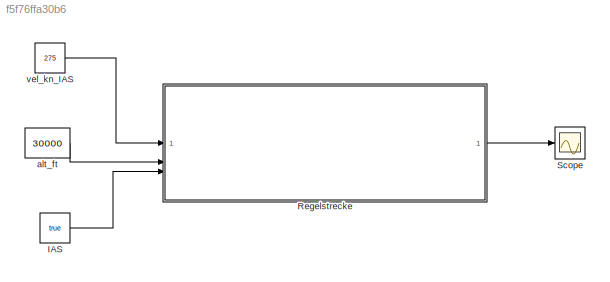
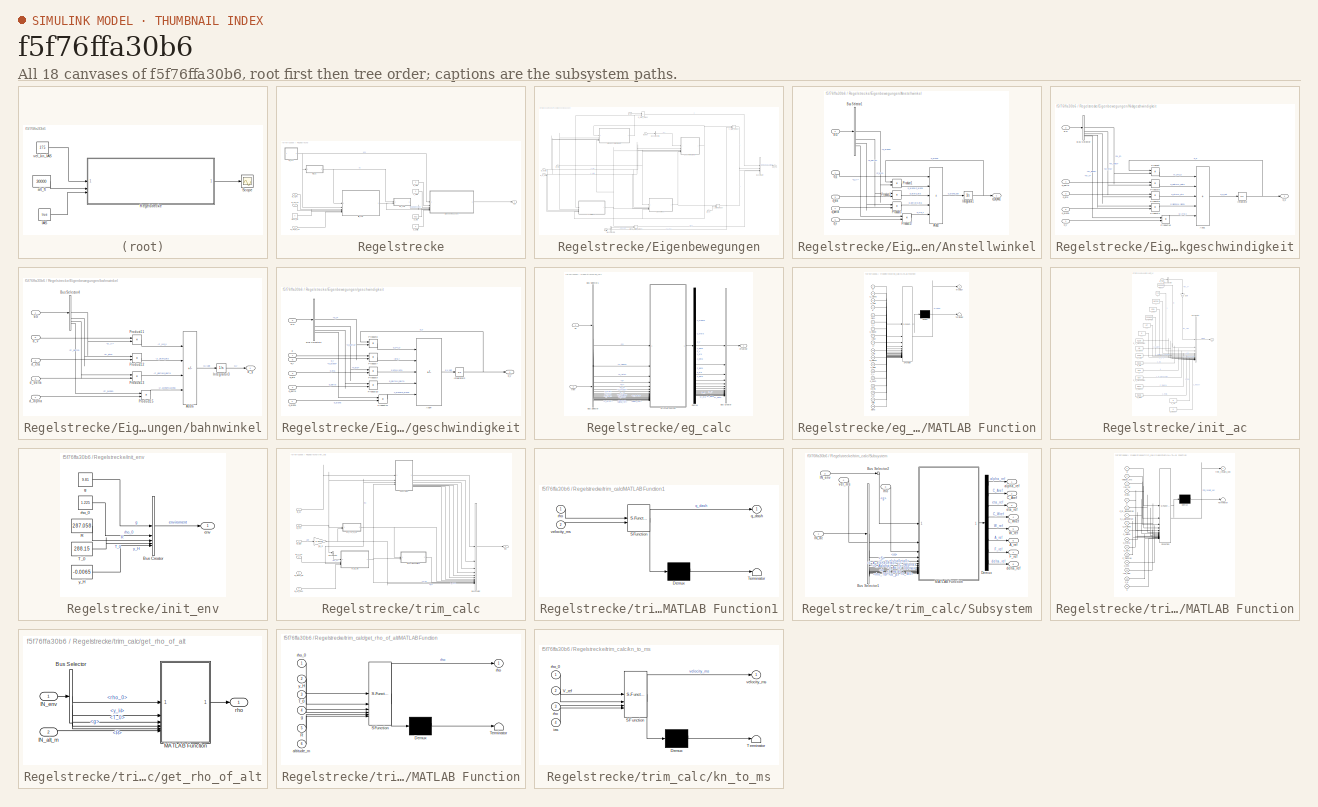
[diagram: thumbnail index - all 18 canvases of the model, root first then tree order]
MODEL slx_f5f76ffa30b6
KIND model
CONFIG AbsTol = auto
CONFIG EnableMultiTasking = off
CONFIG FixedStep = 0.02
CONFIG MaxStep = auto
CONFIG MinStep = auto
CONFIG RelTol = 1e-3
CONFIG SampleTimeConstraint = Unconstrained
CONFIG SolverName = ode4
CONFIG StartTime = 0.0
CONFIG StopTime = 500.0
BLOCK [Constant] IAS
  Value = true
BLOCK [SubSystem] Regelstrecke
BLOCK [SubSystem] Regelstrecke/Eigenbewegungen
BLOCK [SubSystem] Regelstrecke/Eigenbewegungen/Anstellwinkel
BLOCK [Sum] Regelstrecke/Eigenbewegungen/Anstellwinkel/Add2
  IconShape = rectangular
  Inputs = +++++
BLOCK [BusSelector] Regelstrecke/Eigenbewegungen/Anstellwinkel/Bus Selector1
  OutputSignals = Z_alpha,Z_eta,Z_delta,Z_V
BLOCK [Inport] Regelstrecke/Eigenbewegungen/Anstellwinkel/EG
  Port = 2
BLOCK [Integrator] Regelstrecke/Eigenbewegungen/Anstellwinkel/Integrator1
BLOCK [Product] Regelstrecke/Eigenbewegungen/Anstellwinkel/Product1
BLOCK [Product] Regelstrecke/Eigenbewegungen/Anstellwinkel/Product17
BLOCK [Product] Regelstrecke/Eigenbewegungen/Anstellwinkel/Product2
BLOCK [Product] Regelstrecke/Eigenbewegungen/Anstellwinkel/Product3
BLOCK [Outport] Regelstrecke/Eigenbewegungen/Anstellwinkel/d_alpha1
BLOCK [Inport] Regelstrecke/Eigenbewegungen/Anstellwinkel/d_delta
  Port = 4
BLOCK [Inport] Regelstrecke/Eigenbewegungen/Anstellwinkel/d_eta
  Port = 3
BLOCK [Inport] Regelstrecke/Eigenbewegungen/Anstellwinkel/d_q
  NameLocation = top
BLOCK [Inport] Regelstrecke/Eigenbewegungen/Anstellwinkel/d_v
  Port = 5
BLOCK [BusCreator] Regelstrecke/Eigenbewegungen/Bus Creator
  DisplayOption = bar
  InheritFromInputs = on
  Inputs = 4
BLOCK [BusSelector] Regelstrecke/Eigenbewegungen/Bus Selector2
  OutputSignals = alpha_ref,vel_ms
BLOCK [BusSelector] Regelstrecke/Eigenbewegungen/Bus Selector5
  OutputSignals = g
BLOCK [Inport] Regelstrecke/Eigenbewegungen/IN_EG
  Port = 4
BLOCK [Inport] Regelstrecke/Eigenbewegungen/IN_d_delta
  Port = 7
BLOCK [Inport] Regelstrecke/Eigenbewegungen/IN_d_eta
  Port = 6
BLOCK [Inport] Regelstrecke/Eigenbewegungen/IN_env
BLOCK [Inport] Regelstrecke/Eigenbewegungen/IN_q0
  NameLocation = top
  Port = 2
BLOCK [Inport] Regelstrecke/Eigenbewegungen/IN_trim
  Port = 5
BLOCK [Inport] Regelstrecke/Eigenbewegungen/IN_y0
  Port = 3
BLOCK [SubSystem] Regelstrecke/Eigenbewegungen/Nickgeschwindigkeit
BLOCK [Sum] Regelstrecke/Eigenbewegungen/Nickgeschwindigkeit/Add1
  IconShape = rectangular
  Inputs = +++++
BLOCK [BusSelector] Regelstrecke/Eigenbewegungen/Nickgeschwindigkeit/Bus Selector
  OutputSignals = M_q,M_delta,M_eta,M_alpha,M_V
BLOCK [Inport] Regelstrecke/Eigenbewegungen/Nickgeschwindigkeit/EG
  Port = 2
BLOCK [Integrator] Regelstrecke/Eigenbewegungen/Nickgeschwindigkeit/Integrator
BLOCK [Product] Regelstrecke/Eigenbewegungen/Nickgeschwindigkeit/Product
BLOCK [Product] Regelstrecke/Eigenbewegungen/Nickgeschwindigkeit/Product16
BLOCK [Product] Regelstrecke/Eigenbewegungen/Nickgeschwindigkeit/Product4
BLOCK [Product] Regelstrecke/Eigenbewegungen/Nickgeschwindigkeit/Product5
BLOCK [Product] Regelstrecke/Eigenbewegungen/Nickgeschwindigkeit/Product6
BLOCK [Inport] Regelstrecke/Eigenbewegungen/Nickgeschwindigkeit/d_alpha
  Port = 5
BLOCK [Inport] Regelstrecke/Eigenbewegungen/Nickgeschwindigkeit/d_delta
  Port = 4
BLOCK [Inport] Regelstrecke/Eigenbewegungen/Nickgeschwindigkeit/d_eta
  Port = 3
BLOCK [Outport] Regelstrecke/Eigenbewegungen/Nickgeschwindigkeit/d_q
BLOCK [Inport] Regelstrecke/Eigenbewegungen/Nickgeschwindigkeit/d_v
BLOCK [Outport] Regelstrecke/Eigenbewegungen/Out_FZ
BLOCK [Sum] Regelstrecke/Eigenbewegungen/alpha_state_adder
  IconShape = rectangular
  NameLocation = top
BLOCK [SubSystem] Regelstrecke/Eigenbewegungen/bahnwinkel
BLOCK [Sum] Regelstrecke/Eigenbewegungen/bahnwinkel/Add6
  IconShape = rectangular
  Inputs = ----
BLOCK [BusSelector] Regelstrecke/Eigenbewegungen/bahnwinkel/Bus Selector4
  OutputSignals = Z_V,Z_eta,Z_delta,Z_alpha
BLOCK [Inport] Regelstrecke/Eigenbewegungen/bahnwinkel/EG
BLOCK [Integrator] Regelstrecke/Eigenbewegungen/bahnwinkel/Integrator3
BLOCK [Product] Regelstrecke/Eigenbewegungen/bahnwinkel/Product11
BLOCK [Product] Regelstrecke/Eigenbewegungen/bahnwinkel/Product12
BLOCK [Product] Regelstrecke/Eigenbewegungen/bahnwinkel/Product13
BLOCK [Product] Regelstrecke/Eigenbewegungen/bahnwinkel/Product15
BLOCK [Inport] Regelstrecke/Eigenbewegungen/bahnwinkel/d_alpha
  Port = 4
BLOCK [Inport] Regelstrecke/Eigenbewegungen/bahnwinkel/d_delta
  Port = 3
BLOCK [Inport] Regelstrecke/Eigenbewegungen/bahnwinkel/d_eta
  Port = 2
BLOCK [Inport] Regelstrecke/Eigenbewegungen/bahnwinkel/d_v
  Port = 5
BLOCK [Outport] Regelstrecke/Eigenbewegungen/bahnwinkel/d_y
BLOCK [SubSystem] Regelstrecke/Eigenbewegungen/geschwindigkeit
BLOCK [Sum] Regelstrecke/Eigenbewegungen/geschwindigkeit/Add4
  IconShape = rectangular
  Inputs = +-+++
BLOCK [BusSelector] Regelstrecke/Eigenbewegungen/geschwindigkeit/Bus Selector3
  OutputSignals = X_V,X_eta,X_delta,X_alpha
BLOCK [Inport] Regelstrecke/Eigenbewegungen/geschwindigkeit/EG
  Port = 5
BLOCK [Integrator] Regelstrecke/Eigenbewegungen/geschwindigkeit/Integrator2
BLOCK [Product] Regelstrecke/Eigenbewegungen/geschwindigkeit/Product10
BLOCK [Product] Regelstrecke/Eigenbewegungen/geschwindigkeit/Product14
BLOCK [Product] Regelstrecke/Eigenbewegungen/geschwindigkeit/Product7
BLOCK [Product] Regelstrecke/Eigenbewegungen/geschwindigkeit/Product8
BLOCK [Product] Regelstrecke/Eigenbewegungen/geschwindigkeit/Product9
BLOCK [Inport] Regelstrecke/Eigenbewegungen/geschwindigkeit/d_alpha
  Port = 4
BLOCK [Inport] Regelstrecke/Eigenbewegungen/geschwindigkeit/d_delta
  Port = 2
BLOCK [Inport] Regelstrecke/Eigenbewegungen/geschwindigkeit/d_eta
  Port = 3
BLOCK [Outport] Regelstrecke/Eigenbewegungen/geschwindigkeit/d_v
BLOCK [Inport] Regelstrecke/Eigenbewegungen/geschwindigkeit/d_y
  Port = 6
BLOCK [Inport] Regelstrecke/Eigenbewegungen/geschwindigkeit/g
  NameLocation = top
BLOCK [Sum] Regelstrecke/Eigenbewegungen/q_state_adder
  IconShape = rectangular
BLOCK [Sum] Regelstrecke/Eigenbewegungen/v_state_adder
  IconShape = rectangular
  NameLocation = top
BLOCK [Sum] Regelstrecke/Eigenbewegungen/y_state_adder
  IconShape = rectangular
BLOCK [Outport] Regelstrecke/FZ
BLOCK [Inport] Regelstrecke/IN_Alt_Ft
  Port = 2
BLOCK [Inport] Regelstrecke/IN_Vel_Kn
BLOCK [Inport] Regelstrecke/IN_Vel_is_IAS
  Port = 3
BLOCK [Constant] Regelstrecke/alpha_init
  Value = 0
BLOCK [Constant] Regelstrecke/d_delta
  Value = 0
BLOCK [Constant] Regelstrecke/d_eta
  Value = -0.02
BLOCK [SubSystem] Regelstrecke/eg_calc
BLOCK [BusCreator] Regelstrecke/eg_calc/Bus Creator
  DisplayOption = bar
  InheritFromInputs = on
  Inputs = 15
BLOCK [BusSelector] Regelstrecke/eg_calc/Bus Selector
  OutputSignals = C_Aref,q_dash,vel_ms,C_Wref,delta_ref,alpha_ref
BLOCK [BusSelector] Regelstrecke/eg_calc/Bus Selector1
  OutputSignals = k,C_Aalpha,C_Aeta,S,m,n_v,C_madot,l_mue,I_y,C_mq,C_malpha,C_meta
BLOCK [Demux] Regelstrecke/eg_calc/Demux
  Outputs = 15
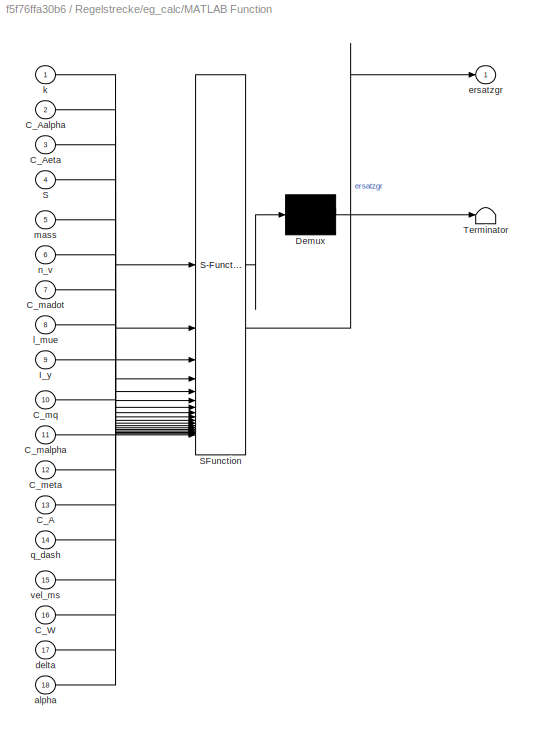
BLOCK [SubSystem] Regelstrecke/eg_calc/MATLAB Function
  ErrorFcn = Stateflow.Translate.translate
  PermitHierarchicalResolution = ExplicitOnly
  SFBlockType = MATLAB Function
  TreatAsAtomicUnit = on
BLOCK [Demux] Regelstrecke/eg_calc/MATLAB Function/ Demux 
  Outputs = 1
BLOCK [S-Function] Regelstrecke/eg_calc/MATLAB Function/ SFunction 
  EnableBusSupport = on
  FunctionName = sf_sfun
  PortCounts = [18 2]
  SFcnIsStateOwnerBlock = off
  SFunctionDeploymentMode = off
  Tag = Stateflow S-Function 5
BLOCK [Terminator] Regelstrecke/eg_calc/MATLAB Function/ Terminator 
BLOCK [Inport] Regelstrecke/eg_calc/MATLAB Function/C_A
  Port = 13
BLOCK [Inport] Regelstrecke/eg_calc/MATLAB Function/C_Aalpha
  Port = 2
BLOCK [Inport] Regelstrecke/eg_calc/MATLAB Function/C_Aeta
  Port = 3
BLOCK [Inport] Regelstrecke/eg_calc/MATLAB Function/C_W
  Port = 16
BLOCK [Inport] Regelstrecke/eg_calc/MATLAB Function/C_madot
  Port = 7
BLOCK [Inport] Regelstrecke/eg_calc/MATLAB Function/C_malpha
  Port = 11
BLOCK [Inport] Regelstrecke/eg_calc/MATLAB Function/C_meta
  Port = 12
BLOCK [Inport] Regelstrecke/eg_calc/MATLAB Function/C_mq
  Port = 10
BLOCK [Inport] Regelstrecke/eg_calc/MATLAB Function/I_y
  Port = 9
BLOCK [Inport] Regelstrecke/eg_calc/MATLAB Function/S
  Port = 4
BLOCK [Inport] Regelstrecke/eg_calc/MATLAB Function/alpha
  Port = 18
BLOCK [Inport] Regelstrecke/eg_calc/MATLAB Function/delta
  Port = 17
BLOCK [Outport] Regelstrecke/eg_calc/MATLAB Function/ersatzgr
BLOCK [Inport] Regelstrecke/eg_calc/MATLAB Function/k
BLOCK [Inport] Regelstrecke/eg_calc/MATLAB Function/l_mue
  Port = 8
BLOCK [Inport] Regelstrecke/eg_calc/MATLAB Function/mass
  Port = 5
BLOCK [Inport] Regelstrecke/eg_calc/MATLAB Function/n_v
  Port = 6
BLOCK [Inport] Regelstrecke/eg_calc/MATLAB Function/q_dash
  Port = 14
BLOCK [Inport] Regelstrecke/eg_calc/MATLAB Function/vel_ms
  Port = 15
BLOCK [Inport] Regelstrecke/eg_calc/ac
BLOCK [Outport] Regelstrecke/eg_calc/ersatzgr
BLOCK [Inport] Regelstrecke/eg_calc/trim
  Port = 2
BLOCK [SubSystem] Regelstrecke/init_ac
BLOCK [BusCreator] Regelstrecke/init_ac/Bus Creator
  DisplayOption = bar
  InheritFromInputs = on
  Inputs = 18
BLOCK [BusSelector] Regelstrecke/init_ac/Bus Selector
  OutputSignals = rho_0
BLOCK [Constant] Regelstrecke/init_ac/C_A_alpha0eta0
  Value = 0.239
BLOCK [Constant] Regelstrecke/init_ac/C_Aalpha
  Value = 4.6
BLOCK [Constant] Regelstrecke/init_ac/C_Aeta
  Value = 0.189
BLOCK [Constant] Regelstrecke/init_ac/C_W0
  Value = 0.015
BLOCK [Constant] Regelstrecke/init_ac/C_m_alpha0eta0
  Value = 0.07
BLOCK [Constant] Regelstrecke/init_ac/C_madot
  Value = -1
BLOCK [Constant] Regelstrecke/init_ac/C_malpha
  Value = -0.824
BLOCK [Constant] Regelstrecke/init_ac/C_meta
  Value = -0.638
BLOCK [Constant] Regelstrecke/init_ac/C_mq
  Value = -3
BLOCK [Constant] Regelstrecke/init_ac/F_TBPmax
  Value = 320800
BLOCK [Gain] Regelstrecke/init_ac/Gain
  NameLocation = left
BLOCK [Constant] Regelstrecke/init_ac/I_y
  Value = 6.87e6
BLOCK [Constant] Regelstrecke/init_ac/S
  Value = 268
BLOCK [Outport] Regelstrecke/init_ac/ac
BLOCK [Inport] Regelstrecke/init_ac/in_env
BLOCK [Constant] Regelstrecke/init_ac/k
  Value = 0.04
BLOCK [Constant] Regelstrecke/init_ac/l_mue
  Value = 6.39
BLOCK [Constant] Regelstrecke/init_ac/mass
  Value = 100000
BLOCK [Constant] Regelstrecke/init_ac/n_p
  Value = 0.7
BLOCK [Constant] Regelstrecke/init_ac/n_v
  Value = 0
BLOCK [SubSystem] Regelstrecke/init_env
BLOCK [BusCreator] Regelstrecke/init_env/Bus Creator
  DisplayOption = bar
  InheritFromInputs = on
  Inputs = 5
BLOCK [Constant] Regelstrecke/init_env/R
  Value = 287.058
BLOCK [Constant] Regelstrecke/init_env/T_0
  Value = 288.15
BLOCK [Outport] Regelstrecke/init_env/env
BLOCK [Constant] Regelstrecke/init_env/g
  Value = 9.81
BLOCK [Constant] Regelstrecke/init_env/rho_0
  Value = 1.225
BLOCK [Constant] Regelstrecke/init_env/y_H
  Value = -0.0065
BLOCK [Constant] Regelstrecke/q_start
  Value = 0
BLOCK [SubSystem] Regelstrecke/trim_calc
BLOCK [BusCreator] Regelstrecke/trim_calc/Bus Creator
  DisplayOption = bar
  InheritFromInputs = on
  Inputs = 12
BLOCK [BusSelector] Regelstrecke/trim_calc/Bus Selector
  OutputSignals = rho_0
BLOCK [Inport] Regelstrecke/trim_calc/IN_IAS_bool
  Port = 6
BLOCK [Inport] Regelstrecke/trim_calc/IN_V_ref
  Port = 4
BLOCK [Inport] Regelstrecke/trim_calc/IN_ac
BLOCK [Inport] Regelstrecke/trim_calc/IN_alpha_init
  Port = 5
BLOCK [Inport] Regelstrecke/trim_calc/IN_alt_ft
  Port = 3
BLOCK [Inport] Regelstrecke/trim_calc/IN_env
  Port = 2
BLOCK [SubSystem] Regelstrecke/trim_calc/MATLAB Function1
  ErrorFcn = Stateflow.Translate.translate
  PermitHierarchicalResolution = ExplicitOnly
  SFBlockType = MATLAB Function
  TreatAsAtomicUnit = on
BLOCK [Demux] Regelstrecke/trim_calc/MATLAB Function1/ Demux 
  Outputs = 1
BLOCK [S-Function] Regelstrecke/trim_calc/MATLAB Function1/ SFunction 
  EnableBusSupport = on
  FunctionName = sf_sfun
  PortCounts = [2 2]
  SFcnIsStateOwnerBlock = off
  SFunctionDeploymentMode = off
  Tag = Stateflow S-Function 3
BLOCK [Terminator] Regelstrecke/trim_calc/MATLAB Function1/ Terminator 
BLOCK [Outport] Regelstrecke/trim_calc/MATLAB Function1/q_dash
BLOCK [Inport] Regelstrecke/trim_calc/MATLAB Function1/rho
BLOCK [Inport] Regelstrecke/trim_calc/MATLAB Function1/velocity_ms
  Port = 2
BLOCK [SubSystem] Regelstrecke/trim_calc/Subsystem
BLOCK [Outport] Regelstrecke/trim_calc/Subsystem/A_ref
  Port = 6
BLOCK [BusSelector] Regelstrecke/trim_calc/Subsystem/Bus Selector1
  OutputSignals = m,S,C_m_alpha0eta0,C_A_alpha0eta0,C_malpha,C_Aalpha,C_meta,C_Aeta,F_TBPmax,C_W0,rho_TBP,n_p,k
BLOCK [BusSelector] Regelstrecke/trim_calc/Subsystem/Bus Selector2
  OutputSignals = g
BLOCK [Outport] Regelstrecke/trim_calc/Subsystem/C_Aref
  Port = 2
BLOCK [Outport] Regelstrecke/trim_calc/Subsystem/C_Wref
  Port = 4
BLOCK [Demux] Regelstrecke/trim_calc/Subsystem/Demux
  Outputs = 8
BLOCK [Outport] Regelstrecke/trim_calc/Subsystem/F_ref
  Port = 7
BLOCK [Inport] Regelstrecke/trim_calc/Subsystem/IN_ac
BLOCK [Inport] Regelstrecke/trim_calc/Subsystem/IN_env
  Port = 2
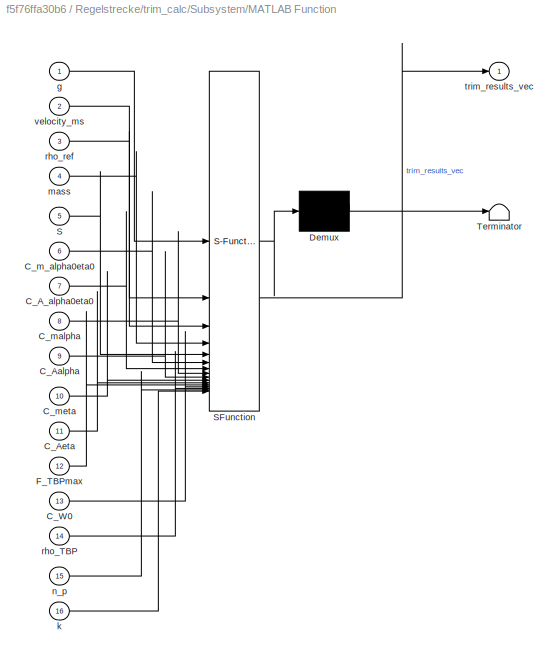
BLOCK [SubSystem] Regelstrecke/trim_calc/Subsystem/MATLAB Function
  ErrorFcn = Stateflow.Translate.translate
  PermitHierarchicalResolution = ExplicitOnly
  SFBlockType = MATLAB Function
  TreatAsAtomicUnit = on
BLOCK [Demux] Regelstrecke/trim_calc/Subsystem/MATLAB Function/ Demux 
  Outputs = 1
BLOCK [S-Function] Regelstrecke/trim_calc/Subsystem/MATLAB Function/ SFunction 
  EnableBusSupport = on
  FunctionName = sf_sfun
  PortCounts = [16 2]
  SFcnIsStateOwnerBlock = off
  SFunctionDeploymentMode = off
  Tag = Stateflow S-Function 4
BLOCK [Terminator] Regelstrecke/trim_calc/Subsystem/MATLAB Function/ Terminator 
BLOCK [Inport] Regelstrecke/trim_calc/Subsystem/MATLAB Function/C_A_alpha0eta0
  Port = 7
BLOCK [Inport] Regelstrecke/trim_calc/Subsystem/MATLAB Function/C_Aalpha
  Port = 9
BLOCK [Inport] Regelstrecke/trim_calc/Subsystem/MATLAB Function/C_Aeta
  Port = 11
BLOCK [Inport] Regelstrecke/trim_calc/Subsystem/MATLAB Function/C_W0
  Port = 13
BLOCK [Inport] Regelstrecke/trim_calc/Subsystem/MATLAB Function/C_m_alpha0eta0
  Port = 6
BLOCK [Inport] Regelstrecke/trim_calc/Subsystem/MATLAB Function/C_malpha
  Port = 8
BLOCK [Inport] Regelstrecke/trim_calc/Subsystem/MATLAB Function/C_meta
  Port = 10
BLOCK [Inport] Regelstrecke/trim_calc/Subsystem/MATLAB Function/F_TBPmax
  Port = 12
BLOCK [Inport] Regelstrecke/trim_calc/Subsystem/MATLAB Function/S
  Port = 5
BLOCK [Inport] Regelstrecke/trim_calc/Subsystem/MATLAB Function/g
BLOCK [Inport] Regelstrecke/trim_calc/Subsystem/MATLAB Function/k
  Port = 16
BLOCK [Inport] Regelstrecke/trim_calc/Subsystem/MATLAB Function/mass
  Port = 4
BLOCK [Inport] Regelstrecke/trim_calc/Subsystem/MATLAB Function/n_p
  Port = 15
BLOCK [Inport] Regelstrecke/trim_calc/Subsystem/MATLAB Function/rho_TBP
  Port = 14
BLOCK [Inport] Regelstrecke/trim_calc/Subsystem/MATLAB Function/rho_ref
  Port = 3
BLOCK [Outport] Regelstrecke/trim_calc/Subsystem/MATLAB Function/trim_results_vec
BLOCK [Inport] Regelstrecke/trim_calc/Subsystem/MATLAB Function/velocity_ms
  Port = 2
BLOCK [Outport] Regelstrecke/trim_calc/Subsystem/W_ref
  Port = 5
BLOCK [Outport] Regelstrecke/trim_calc/Subsystem/alpha_ref
BLOCK [Outport] Regelstrecke/trim_calc/Subsystem/delta_ref
  Port = 8
BLOCK [Outport] Regelstrecke/trim_calc/Subsystem/eta_ref
  Port = 3
BLOCK [Inport] Regelstrecke/trim_calc/Subsystem/rho
  Port = 3
BLOCK [Inport] Regelstrecke/trim_calc/Subsystem/vel_ms
  Port = 4
BLOCK [Gain] Regelstrecke/trim_calc/ft_to_m
  Gain = 0.30479
BLOCK [SubSystem] Regelstrecke/trim_calc/get_rho_of_alt
BLOCK [BusSelector] Regelstrecke/trim_calc/get_rho_of_alt/Bus Selector
  OutputSignals = rho_0,y_H,T_0,g,R
BLOCK [Inport] Regelstrecke/trim_calc/get_rho_of_alt/IN_alt_m
  Port = 2
BLOCK [Inport] Regelstrecke/trim_calc/get_rho_of_alt/IN_env
BLOCK [SubSystem] Regelstrecke/trim_calc/get_rho_of_alt/MATLAB Function
  ErrorFcn = Stateflow.Translate.translate
  PermitHierarchicalResolution = ExplicitOnly
  SFBlockType = MATLAB Function
  TreatAsAtomicUnit = on
BLOCK [Demux] Regelstrecke/trim_calc/get_rho_of_alt/MATLAB Function/ Demux 
  Outputs = 1
BLOCK [S-Function] Regelstrecke/trim_calc/get_rho_of_alt/MATLAB Function/ SFunction 
  EnableBusSupport = on
  FunctionName = sf_sfun
  PortCounts = [6 2]
  SFcnIsStateOwnerBlock = off
  SFunctionDeploymentMode = off
  Tag = Stateflow S-Function 2
BLOCK [Terminator] Regelstrecke/trim_calc/get_rho_of_alt/MATLAB Function/ Terminator 
BLOCK [Inport] Regelstrecke/trim_calc/get_rho_of_alt/MATLAB Function/R
  Port = 5
BLOCK [Inport] Regelstrecke/trim_calc/get_rho_of_alt/MATLAB Function/T_0
  Port = 3
BLOCK [Inport] Regelstrecke/trim_calc/get_rho_of_alt/MATLAB Function/altitude_m
  Port = 6
BLOCK [Inport] Regelstrecke/trim_calc/get_rho_of_alt/MATLAB Function/g
  Port = 4
BLOCK [Outport] Regelstrecke/trim_calc/get_rho_of_alt/MATLAB Function/rho
BLOCK [Inport] Regelstrecke/trim_calc/get_rho_of_alt/MATLAB Function/rho_0
BLOCK [Inport] Regelstrecke/trim_calc/get_rho_of_alt/MATLAB Function/y_H
  Port = 2
BLOCK [Outport] Regelstrecke/trim_calc/get_rho_of_alt/rho
BLOCK [SubSystem] Regelstrecke/trim_calc/kn_to_ms
  ErrorFcn = Stateflow.Translate.translate
  PermitHierarchicalResolution = ExplicitOnly
  SFBlockType = MATLAB Function
  TreatAsAtomicUnit = on
BLOCK [Demux] Regelstrecke/trim_calc/kn_to_ms/ Demux 
  Outputs = 1
BLOCK [S-Function] Regelstrecke/trim_calc/kn_to_ms/ SFunction 
  EnableBusSupport = on
  FunctionName = sf_sfun
  PortCounts = [4 2]
  SFcnIsStateOwnerBlock = off
  SFunctionDeploymentMode = off
  Tag = Stateflow S-Function 1
BLOCK [Terminator] Regelstrecke/trim_calc/kn_to_ms/ Terminator 
BLOCK [Inport] Regelstrecke/trim_calc/kn_to_ms/V_ref
  Port = 2
BLOCK [Inport] Regelstrecke/trim_calc/kn_to_ms/ias
  Port = 4
BLOCK [Inport] Regelstrecke/trim_calc/kn_to_ms/rho
  Port = 3
BLOCK [Inport] Regelstrecke/trim_calc/kn_to_ms/rho_0
BLOCK [Outport] Regelstrecke/trim_calc/kn_to_ms/velocity_ms
BLOCK [Outport] Regelstrecke/trim_calc/trim
BLOCK [Constant] Regelstrecke/y_start
  Value = 0
BLOCK [Scope] Scope
  Floating = off
  NumInputPorts = 1
  ScopeSpecificationString = Simulink.scopes.TimeScopeBlockCfg('CurrentConfiguration', extmgr.ConfigurationSet(extmgr.Configuration('Core','General UI',true),extmgr.Configuration('Core','Source UI',true),extmgr.Configuration('Sources','WiredSimulink',true),extmgr.Configuration('Visuals','Time Domain',true,'SerializedDisplays',{struct('MinYLimReal','-4.26053','MaxYLimReal','2.26393','YLabelReal','','MinYLimMag','0.00000','MaxY...<+1730ch>
BLOCK [Constant] alt_ft
  Value = 30000
BLOCK [Constant] vel_kn_IAS
  Value = 275
LINE IAS:1 -> Regelstrecke:3
LINE Regelstrecke/Eigenbewegungen/Anstellwinkel/Add2:1 -> Regelstrecke/Eigenbewegungen/Anstellwinkel/Integrator1:1
LINE Regelstrecke/Eigenbewegungen/Anstellwinkel/Bus Selector1:1 -> Regelstrecke/Eigenbewegungen/Anstellwinkel/Product1:2
LINE Regelstrecke/Eigenbewegungen/Anstellwinkel/Bus Selector1:2 -> Regelstrecke/Eigenbewegungen/Anstellwinkel/Product2:1
LINE Regelstrecke/Eigenbewegungen/Anstellwinkel/Bus Selector1:3 -> Regelstrecke/Eigenbewegungen/Anstellwinkel/Product3:1
LINE Regelstrecke/Eigenbewegungen/Anstellwinkel/Bus Selector1:4 -> Regelstrecke/Eigenbewegungen/Anstellwinkel/Product17:1
LINE Regelstrecke/Eigenbewegungen/Anstellwinkel/EG:1 -> Regelstrecke/Eigenbewegungen/Anstellwinkel/Bus Selector1:1
NET Regelstrecke/Eigenbewegungen/Anstellwinkel/Integrator1:1 -> Regelstrecke/Eigenbewegungen/Anstellwinkel/Product1:1, Regelstrecke/Eigenbewegungen/Anstellwinkel/d_alpha1:1
LINE Regelstrecke/Eigenbewegungen/Anstellwinkel/Product17:1 -> Regelstrecke/Eigenbewegungen/Anstellwinkel/Add2:5
LINE Regelstrecke/Eigenbewegungen/Anstellwinkel/Product1:1 -> Regelstrecke/Eigenbewegungen/Anstellwinkel/Add2:2
LINE Regelstrecke/Eigenbewegungen/Anstellwinkel/Product2:1 -> Regelstrecke/Eigenbewegungen/Anstellwinkel/Add2:3
LINE Regelstrecke/Eigenbewegungen/Anstellwinkel/Product3:1 -> Regelstrecke/Eigenbewegungen/Anstellwinkel/Add2:4
LINE Regelstrecke/Eigenbewegungen/Anstellwinkel/d_delta:1 -> Regelstrecke/Eigenbewegungen/Anstellwinkel/Product3:2
LINE Regelstrecke/Eigenbewegungen/Anstellwinkel/d_eta:1 -> Regelstrecke/Eigenbewegungen/Anstellwinkel/Product2:2
LINE Regelstrecke/Eigenbewegungen/Anstellwinkel/d_q:1 -> Regelstrecke/Eigenbewegungen/Anstellwinkel/Add2:1
LINE Regelstrecke/Eigenbewegungen/Anstellwinkel/d_v:1 -> Regelstrecke/Eigenbewegungen/Anstellwinkel/Product17:2
NET Regelstrecke/Eigenbewegungen/Anstellwinkel:1 -> Regelstrecke/Eigenbewegungen/Nickgeschwindigkeit:5, Regelstrecke/Eigenbewegungen/alpha_state_adder:1, Regelstrecke/Eigenbewegungen/bahnwinkel:4, Regelstrecke/Eigenbewegungen/geschwindigkeit:4
LINE Regelstrecke/Eigenbewegungen/Bus Creator:1 -> Regelstrecke/Eigenbewegungen/Out_FZ:1
LINE Regelstrecke/Eigenbewegungen/Bus Selector2:1 -> Regelstrecke/Eigenbewegungen/alpha_state_adder:2
LINE Regelstrecke/Eigenbewegungen/Bus Selector2:2 -> Regelstrecke/Eigenbewegungen/v_state_adder:2
LINE Regelstrecke/Eigenbewegungen/Bus Selector5:1 -> Regelstrecke/Eigenbewegungen/geschwindigkeit:1
NET Regelstrecke/Eigenbewegungen/IN_EG:1 -> Regelstrecke/Eigenbewegungen/Anstellwinkel:2, Regelstrecke/Eigenbewegungen/Nickgeschwindigkeit:2, Regelstrecke/Eigenbewegungen/bahnwinkel:1, Regelstrecke/Eigenbewegungen/geschwindigkeit:5
NET Regelstrecke/Eigenbewegungen/IN_d_delta:1 -> Regelstrecke/Eigenbewegungen/Anstellwinkel:4, Regelstrecke/Eigenbewegungen/Nickgeschwindigkeit:4, Regelstrecke/Eigenbewegungen/bahnwinkel:3, Regelstrecke/Eigenbewegungen/geschwindigkeit:2
NET Regelstrecke/Eigenbewegungen/IN_d_eta:1 -> Regelstrecke/Eigenbewegungen/Anstellwinkel:3, Regelstrecke/Eigenbewegungen/Nickgeschwindigkeit:3, Regelstrecke/Eigenbewegungen/bahnwinkel:2, Regelstrecke/Eigenbewegungen/geschwindigkeit:3
LINE Regelstrecke/Eigenbewegungen/IN_env:1 -> Regelstrecke/Eigenbewegungen/Bus Selector5:1
LINE Regelstrecke/Eigenbewegungen/IN_q0:1 -> Regelstrecke/Eigenbewegungen/q_state_adder:1
LINE Regelstrecke/Eigenbewegungen/IN_trim:1 -> Regelstrecke/Eigenbewegungen/Bus Selector2:1
LINE Regelstrecke/Eigenbewegungen/IN_y0:1 -> Regelstrecke/Eigenbewegungen/y_state_adder:2
LINE Regelstrecke/Eigenbewegungen/Nickgeschwindigkeit/Add1:1 -> Regelstrecke/Eigenbewegungen/Nickgeschwindigkeit/Integrator:1
LINE Regelstrecke/Eigenbewegungen/Nickgeschwindigkeit/Bus Selector:1 -> Regelstrecke/Eigenbewegungen/Nickgeschwindigkeit/Product:2
LINE Regelstrecke/Eigenbewegungen/Nickgeschwindigkeit/Bus Selector:2 -> Regelstrecke/Eigenbewegungen/Nickgeschwindigkeit/Product6:2
LINE Regelstrecke/Eigenbewegungen/Nickgeschwindigkeit/Bus Selector:3 -> Regelstrecke/Eigenbewegungen/Nickgeschwindigkeit/Product5:2
LINE Regelstrecke/Eigenbewegungen/Nickgeschwindigkeit/Bus Selector:4 -> Regelstrecke/Eigenbewegungen/Nickgeschwindigkeit/Product4:1
LINE Regelstrecke/Eigenbewegungen/Nickgeschwindigkeit/Bus Selector:5 -> Regelstrecke/Eigenbewegungen/Nickgeschwindigkeit/Product16:1
LINE Regelstrecke/Eigenbewegungen/Nickgeschwindigkeit/EG:1 -> Regelstrecke/Eigenbewegungen/Nickgeschwindigkeit/Bus Selector:1
NET Regelstrecke/Eigenbewegungen/Nickgeschwindigkeit/Integrator:1 -> Regelstrecke/Eigenbewegungen/Nickgeschwindigkeit/Product:1, Regelstrecke/Eigenbewegungen/Nickgeschwindigkeit/d_q:1
LINE Regelstrecke/Eigenbewegungen/Nickgeschwindigkeit/Product16:1 -> Regelstrecke/Eigenbewegungen/Nickgeschwindigkeit/Add1:5
LINE Regelstrecke/Eigenbewegungen/Nickgeschwindigkeit/Product4:1 -> Regelstrecke/Eigenbewegungen/Nickgeschwindigkeit/Add1:4
LINE Regelstrecke/Eigenbewegungen/Nickgeschwindigkeit/Product5:1 -> Regelstrecke/Eigenbewegungen/Nickgeschwindigkeit/Add1:3
LINE Regelstrecke/Eigenbewegungen/Nickgeschwindigkeit/Product6:1 -> Regelstrecke/Eigenbewegungen/Nickgeschwindigkeit/Add1:2
LINE Regelstrecke/Eigenbewegungen/Nickgeschwindigkeit/Product:1 -> Regelstrecke/Eigenbewegungen/Nickgeschwindigkeit/Add1:1
LINE Regelstrecke/Eigenbewegungen/Nickgeschwindigkeit/d_alpha:1 -> Regelstrecke/Eigenbewegungen/Nickgeschwindigkeit/Product4:2
LINE Regelstrecke/Eigenbewegungen/Nickgeschwindigkeit/d_delta:1 -> Regelstrecke/Eigenbewegungen/Nickgeschwindigkeit/Product6:1
LINE Regelstrecke/Eigenbewegungen/Nickgeschwindigkeit/d_eta:1 -> Regelstrecke/Eigenbewegungen/Nickgeschwindigkeit/Product5:1
LINE Regelstrecke/Eigenbewegungen/Nickgeschwindigkeit/d_v:1 -> Regelstrecke/Eigenbewegungen/Nickgeschwindigkeit/Product16:2
NET Regelstrecke/Eigenbewegungen/Nickgeschwindigkeit:1 -> Regelstrecke/Eigenbewegungen/Anstellwinkel:1, Regelstrecke/Eigenbewegungen/q_state_adder:2
LINE Regelstrecke/Eigenbewegungen/alpha_state_adder:1 -> Regelstrecke/Eigenbewegungen/Bus Creator:4
LINE Regelstrecke/Eigenbewegungen/bahnwinkel/Add6:1 -> Regelstrecke/Eigenbewegungen/bahnwinkel/Integrator3:1
LINE Regelstrecke/Eigenbewegungen/bahnwinkel/Bus Selector4:1 -> Regelstrecke/Eigenbewegungen/bahnwinkel/Product11:2
LINE Regelstrecke/Eigenbewegungen/bahnwinkel/Bus Selector4:2 -> Regelstrecke/Eigenbewegungen/bahnwinkel/Product12:1
LINE Regelstrecke/Eigenbewegungen/bahnwinkel/Bus Selector4:3 -> Regelstrecke/Eigenbewegungen/bahnwinkel/Product13:1
LINE Regelstrecke/Eigenbewegungen/bahnwinkel/Bus Selector4:4 -> Regelstrecke/Eigenbewegungen/bahnwinkel/Product15:1
LINE Regelstrecke/Eigenbewegungen/bahnwinkel/EG:1 -> Regelstrecke/Eigenbewegungen/bahnwinkel/Bus Selector4:1
LINE Regelstrecke/Eigenbewegungen/bahnwinkel/Integrator3:1 -> Regelstrecke/Eigenbewegungen/bahnwinkel/d_y:1
LINE Regelstrecke/Eigenbewegungen/bahnwinkel/Product11:1 -> Regelstrecke/Eigenbewegungen/bahnwinkel/Add6:1
LINE Regelstrecke/Eigenbewegungen/bahnwinkel/Product12:1 -> Regelstrecke/Eigenbewegungen/bahnwinkel/Add6:2
LINE Regelstrecke/Eigenbewegungen/bahnwinkel/Product13:1 -> Regelstrecke/Eigenbewegungen/bahnwinkel/Add6:3
LINE Regelstrecke/Eigenbewegungen/bahnwinkel/Product15:1 -> Regelstrecke/Eigenbewegungen/bahnwinkel/Add6:4
LINE Regelstrecke/Eigenbewegungen/bahnwinkel/d_alpha:1 -> Regelstrecke/Eigenbewegungen/bahnwinkel/Product15:2
LINE Regelstrecke/Eigenbewegungen/bahnwinkel/d_delta:1 -> Regelstrecke/Eigenbewegungen/bahnwinkel/Product13:2
LINE Regelstrecke/Eigenbewegungen/bahnwinkel/d_eta:1 -> Regelstrecke/Eigenbewegungen/bahnwinkel/Product12:2
LINE Regelstrecke/Eigenbewegungen/bahnwinkel/d_v:1 -> Regelstrecke/Eigenbewegungen/bahnwinkel/Product11:1
NET Regelstrecke/Eigenbewegungen/bahnwinkel:1 -> Regelstrecke/Eigenbewegungen/geschwindigkeit:6, Regelstrecke/Eigenbewegungen/y_state_adder:1
LINE Regelstrecke/Eigenbewegungen/geschwindigkeit/Add4:1 -> Regelstrecke/Eigenbewegungen/geschwindigkeit/Integrator2:1
LINE Regelstrecke/Eigenbewegungen/geschwindigkeit/Bus Selector3:1 -> Regelstrecke/Eigenbewegungen/geschwindigkeit/Product8:2
LINE Regelstrecke/Eigenbewegungen/geschwindigkeit/Bus Selector3:2 -> Regelstrecke/Eigenbewegungen/geschwindigkeit/Product9:1
LINE Regelstrecke/Eigenbewegungen/geschwindigkeit/Bus Selector3:3 -> Regelstrecke/Eigenbewegungen/geschwindigkeit/Product10:1
LINE Regelstrecke/Eigenbewegungen/geschwindigkeit/Bus Selector3:4 -> Regelstrecke/Eigenbewegungen/geschwindigkeit/Product14:1
LINE Regelstrecke/Eigenbewegungen/geschwindigkeit/EG:1 -> Regelstrecke/Eigenbewegungen/geschwindigkeit/Bus Selector3:1
NET Regelstrecke/Eigenbewegungen/geschwindigkeit/Integrator2:1 -> Regelstrecke/Eigenbewegungen/geschwindigkeit/Product8:1, Regelstrecke/Eigenbewegungen/geschwindigkeit/d_v:1
LINE Regelstrecke/Eigenbewegungen/geschwindigkeit/Product10:1 -> Regelstrecke/Eigenbewegungen/geschwindigkeit/Add4:4
LINE Regelstrecke/Eigenbewegungen/geschwindigkeit/Product14:1 -> Regelstrecke/Eigenbewegungen/geschwindigkeit/Add4:5
LINE Regelstrecke/Eigenbewegungen/geschwindigkeit/Product7:1 -> Regelstrecke/Eigenbewegungen/geschwindigkeit/Add4:2
LINE Regelstrecke/Eigenbewegungen/geschwindigkeit/Product8:1 -> Regelstrecke/Eigenbewegungen/geschwindigkeit/Add4:1
LINE Regelstrecke/Eigenbewegungen/geschwindigkeit/Product9:1 -> Regelstrecke/Eigenbewegungen/geschwindigkeit/Add4:3
LINE Regelstrecke/Eigenbewegungen/geschwindigkeit/d_alpha:1 -> Regelstrecke/Eigenbewegungen/geschwindigkeit/Product14:2
LINE Regelstrecke/Eigenbewegungen/geschwindigkeit/d_delta:1 -> Regelstrecke/Eigenbewegungen/geschwindigkeit/Product10:2
LINE Regelstrecke/Eigenbewegungen/geschwindigkeit/d_eta:1 -> Regelstrecke/Eigenbewegungen/geschwindigkeit/Product9:2
LINE Regelstrecke/Eigenbewegungen/geschwindigkeit/d_y:1 -> Regelstrecke/Eigenbewegungen/geschwindigkeit/Product7:2
LINE Regelstrecke/Eigenbewegungen/geschwindigkeit/g:1 -> Regelstrecke/Eigenbewegungen/geschwindigkeit/Product7:1
NET Regelstrecke/Eigenbewegungen/geschwindigkeit:1 -> Regelstrecke/Eigenbewegungen/Anstellwinkel:5, Regelstrecke/Eigenbewegungen/Nickgeschwindigkeit:1, Regelstrecke/Eigenbewegungen/bahnwinkel:5, Regelstrecke/Eigenbewegungen/v_state_adder:1
LINE Regelstrecke/Eigenbewegungen/q_state_adder:1 -> Regelstrecke/Eigenbewegungen/Bus Creator:1
LINE Regelstrecke/Eigenbewegungen/v_state_adder:1 -> Regelstrecke/Eigenbewegungen/Bus Creator:2
LINE Regelstrecke/Eigenbewegungen/y_state_adder:1 -> Regelstrecke/Eigenbewegungen/Bus Creator:3
LINE Regelstrecke/Eigenbewegungen:1 -> Regelstrecke/FZ:1
LINE Regelstrecke/IN_Alt_Ft:1 -> Regelstrecke/trim_calc:3
LINE Regelstrecke/IN_Vel_Kn:1 -> Regelstrecke/trim_calc:4
LINE Regelstrecke/IN_Vel_is_IAS:1 -> Regelstrecke/trim_calc:6
LINE Regelstrecke/alpha_init:1 -> Regelstrecke/trim_calc:5
LINE Regelstrecke/d_delta:1 -> Regelstrecke/Eigenbewegungen:7
LINE Regelstrecke/d_eta:1 -> Regelstrecke/Eigenbewegungen:6
LINE Regelstrecke/eg_calc/Bus Creator:1 -> Regelstrecke/eg_calc/ersatzgr:1
LINE Regelstrecke/eg_calc/Bus Selector1:1 -> Regelstrecke/eg_calc/MATLAB Function:1
LINE Regelstrecke/eg_calc/Bus Selector1:10 -> Regelstrecke/eg_calc/MATLAB Function:10
LINE Regelstrecke/eg_calc/Bus Selector1:11 -> Regelstrecke/eg_calc/MATLAB Function:11
LINE Regelstrecke/eg_calc/Bus Selector1:12 -> Regelstrecke/eg_calc/MATLAB Function:12
LINE Regelstrecke/eg_calc/Bus Selector1:2 -> Regelstrecke/eg_calc/MATLAB Function:2
LINE Regelstrecke/eg_calc/Bus Selector1:3 -> Regelstrecke/eg_calc/MATLAB Function:3
LINE Regelstrecke/eg_calc/Bus Selector1:4 -> Regelstrecke/eg_calc/MATLAB Function:4
LINE Regelstrecke/eg_calc/Bus Selector1:5 -> Regelstrecke/eg_calc/MATLAB Function:5
LINE Regelstrecke/eg_calc/Bus Selector1:6 -> Regelstrecke/eg_calc/MATLAB Function:6
LINE Regelstrecke/eg_calc/Bus Selector1:7 -> Regelstrecke/eg_calc/MATLAB Function:7
LINE Regelstrecke/eg_calc/Bus Selector1:8 -> Regelstrecke/eg_calc/MATLAB Function:8
LINE Regelstrecke/eg_calc/Bus Selector1:9 -> Regelstrecke/eg_calc/MATLAB Function:9
LINE Regelstrecke/eg_calc/Bus Selector:1 -> Regelstrecke/eg_calc/MATLAB Function:13
LINE Regelstrecke/eg_calc/Bus Selector:2 -> Regelstrecke/eg_calc/MATLAB Function:14
LINE Regelstrecke/eg_calc/Bus Selector:3 -> Regelstrecke/eg_calc/MATLAB Function:15
LINE Regelstrecke/eg_calc/Bus Selector:4 -> Regelstrecke/eg_calc/MATLAB Function:16
LINE Regelstrecke/eg_calc/Bus Selector:5 -> Regelstrecke/eg_calc/MATLAB Function:17
LINE Regelstrecke/eg_calc/Bus Selector:6 -> Regelstrecke/eg_calc/MATLAB Function:18
LINE Regelstrecke/eg_calc/Demux:1 -> Regelstrecke/eg_calc/Bus Creator:1
LINE Regelstrecke/eg_calc/Demux:10 -> Regelstrecke/eg_calc/Bus Creator:10
LINE Regelstrecke/eg_calc/Demux:11 -> Regelstrecke/eg_calc/Bus Creator:11
LINE Regelstrecke/eg_calc/Demux:12 -> Regelstrecke/eg_calc/Bus Creator:12
LINE Regelstrecke/eg_calc/Demux:13 -> Regelstrecke/eg_calc/Bus Creator:13
LINE Regelstrecke/eg_calc/Demux:14 -> Regelstrecke/eg_calc/Bus Creator:14
LINE Regelstrecke/eg_calc/Demux:15 -> Regelstrecke/eg_calc/Bus Creator:15
LINE Regelstrecke/eg_calc/Demux:2 -> Regelstrecke/eg_calc/Bus Creator:2
LINE Regelstrecke/eg_calc/Demux:3 -> Regelstrecke/eg_calc/Bus Creator:3
LINE Regelstrecke/eg_calc/Demux:4 -> Regelstrecke/eg_calc/Bus Creator:4
LINE Regelstrecke/eg_calc/Demux:5 -> Regelstrecke/eg_calc/Bus Creator:5
LINE Regelstrecke/eg_calc/Demux:6 -> Regelstrecke/eg_calc/Bus Creator:6
LINE Regelstrecke/eg_calc/Demux:7 -> Regelstrecke/eg_calc/Bus Creator:7
LINE Regelstrecke/eg_calc/Demux:8 -> Regelstrecke/eg_calc/Bus Creator:8
LINE Regelstrecke/eg_calc/Demux:9 -> Regelstrecke/eg_calc/Bus Creator:9
LINE Regelstrecke/eg_calc/MATLAB Function:1 -> Regelstrecke/eg_calc/Demux:1
LINE Regelstrecke/eg_calc/ac:1 -> Regelstrecke/eg_calc/Bus Selector1:1
LINE Regelstrecke/eg_calc/trim:1 -> Regelstrecke/eg_calc/Bus Selector:1
LINE Regelstrecke/eg_calc:1 -> Regelstrecke/Eigenbewegungen:4
LINE Regelstrecke/init_ac/Bus Creator:1 -> Regelstrecke/init_ac/ac:1
LINE Regelstrecke/init_ac/Bus Selector:1 -> Regelstrecke/init_ac/Gain:1
LINE Regelstrecke/init_ac/C_A_alpha0eta0:1 -> Regelstrecke/init_ac/Bus Creator:9
LINE Regelstrecke/init_ac/C_Aalpha:1 -> Regelstrecke/init_ac/Bus Creator:10
LINE Regelstrecke/init_ac/C_Aeta:1 -> Regelstrecke/init_ac/Bus Creator:11
LINE Regelstrecke/init_ac/C_W0:1 -> Regelstrecke/init_ac/Bus Creator:12
LINE Regelstrecke/init_ac/C_m_alpha0eta0:1 -> Regelstrecke/init_ac/Bus Creator:14
LINE Regelstrecke/init_ac/C_madot:1 -> Regelstrecke/init_ac/Bus Creator:18
LINE Regelstrecke/init_ac/C_malpha:1 -> Regelstrecke/init_ac/Bus Creator:15
LINE Regelstrecke/init_ac/C_meta:1 -> Regelstrecke/init_ac/Bus Creator:16
LINE Regelstrecke/init_ac/C_mq:1 -> Regelstrecke/init_ac/Bus Creator:17
LINE Regelstrecke/init_ac/F_TBPmax:1 -> Regelstrecke/init_ac/Bus Creator:6
LINE Regelstrecke/init_ac/Gain:1 -> Regelstrecke/init_ac/Bus Creator:1
LINE Regelstrecke/init_ac/I_y:1 -> Regelstrecke/init_ac/Bus Creator:4
LINE Regelstrecke/init_ac/S:1 -> Regelstrecke/init_ac/Bus Creator:3
LINE Regelstrecke/init_ac/in_env:1 -> Regelstrecke/init_ac/Bus Selector:1
LINE Regelstrecke/init_ac/k:1 -> Regelstrecke/init_ac/Bus Creator:13
LINE Regelstrecke/init_ac/l_mue:1 -> Regelstrecke/init_ac/Bus Creator:5
LINE Regelstrecke/init_ac/mass:1 -> Regelstrecke/init_ac/Bus Creator:2
LINE Regelstrecke/init_ac/n_p:1 -> Regelstrecke/init_ac/Bus Creator:7
LINE Regelstrecke/init_ac/n_v:1 -> Regelstrecke/init_ac/Bus Creator:8
NET Regelstrecke/init_ac:1 -> Regelstrecke/eg_calc:1, Regelstrecke/trim_calc:1
LINE Regelstrecke/init_env/Bus Creator:1 -> Regelstrecke/init_env/env:1
LINE Regelstrecke/init_env/R:1 -> Regelstrecke/init_env/Bus Creator:3
LINE Regelstrecke/init_env/T_0:1 -> Regelstrecke/init_env/Bus Creator:4
LINE Regelstrecke/init_env/g:1 -> Regelstrecke/init_env/Bus Creator:1
LINE Regelstrecke/init_env/rho_0:1 -> Regelstrecke/init_env/Bus Creator:2
LINE Regelstrecke/init_env/y_H:1 -> Regelstrecke/init_env/Bus Creator:5
NET Regelstrecke/init_env:1 -> Regelstrecke/Eigenbewegungen:1, Regelstrecke/init_ac:1, Regelstrecke/trim_calc:2
LINE Regelstrecke/q_start:1 -> Regelstrecke/Eigenbewegungen:2
LINE Regelstrecke/trim_calc/Bus Creator:1 -> Regelstrecke/trim_calc/trim:1
LINE Regelstrecke/trim_calc/Bus Selector:1 -> Regelstrecke/trim_calc/kn_to_ms:1
LINE Regelstrecke/trim_calc/IN_IAS_bool:1 -> Regelstrecke/trim_calc/kn_to_ms:4
LINE Regelstrecke/trim_calc/IN_V_ref:1 -> Regelstrecke/trim_calc/kn_to_ms:2
LINE Regelstrecke/trim_calc/IN_ac:1 -> Regelstrecke/trim_calc/Subsystem:1
LINE Regelstrecke/trim_calc/IN_alt_ft:1 -> Regelstrecke/trim_calc/ft_to_m:1
NET Regelstrecke/trim_calc/IN_env:1 -> Regelstrecke/trim_calc/Bus Selector:1, Regelstrecke/trim_calc/Subsystem:2, Regelstrecke/trim_calc/get_rho_of_alt:1
LINE Regelstrecke/trim_calc/MATLAB Function1:1 -> Regelstrecke/trim_calc/Bus Creator:10
LINE Regelstrecke/trim_calc/Subsystem/Bus Selector1:1 -> Regelstrecke/trim_calc/Subsystem/MATLAB Function:4
LINE Regelstrecke/trim_calc/Subsystem/Bus Selector1:10 -> Regelstrecke/trim_calc/Subsystem/MATLAB Function:13
LINE Regelstrecke/trim_calc/Subsystem/Bus Selector1:11 -> Regelstrecke/trim_calc/Subsystem/MATLAB Function:14
LINE Regelstrecke/trim_calc/Subsystem/Bus Selector1:12 -> Regelstrecke/trim_calc/Subsystem/MATLAB Function:15
LINE Regelstrecke/trim_calc/Subsystem/Bus Selector1:13 -> Regelstrecke/trim_calc/Subsystem/MATLAB Function:16
LINE Regelstrecke/trim_calc/Subsystem/Bus Selector1:2 -> Regelstrecke/trim_calc/Subsystem/MATLAB Function:5
LINE Regelstrecke/trim_calc/Subsystem/Bus Selector1:3 -> Regelstrecke/trim_calc/Subsystem/MATLAB Function:6
LINE Regelstrecke/trim_calc/Subsystem/Bus Selector1:4 -> Regelstrecke/trim_calc/Subsystem/MATLAB Function:7
LINE Regelstrecke/trim_calc/Subsystem/Bus Selector1:5 -> Regelstrecke/trim_calc/Subsystem/MATLAB Function:8
LINE Regelstrecke/trim_calc/Subsystem/Bus Selector1:6 -> Regelstrecke/trim_calc/Subsystem/MATLAB Function:9
LINE Regelstrecke/trim_calc/Subsystem/Bus Selector1:7 -> Regelstrecke/trim_calc/Subsystem/MATLAB Function:10
LINE Regelstrecke/trim_calc/Subsystem/Bus Selector1:8 -> Regelstrecke/trim_calc/Subsystem/MATLAB Function:11
LINE Regelstrecke/trim_calc/Subsystem/Bus Selector1:9 -> Regelstrecke/trim_calc/Subsystem/MATLAB Function:12
LINE Regelstrecke/trim_calc/Subsystem/Bus Selector2:1 -> Regelstrecke/trim_calc/Subsystem/MATLAB Function:1
LINE Regelstrecke/trim_calc/Subsystem/Demux:1 -> Regelstrecke/trim_calc/Subsystem/alpha_ref:1
LINE Regelstrecke/trim_calc/Subsystem/Demux:2 -> Regelstrecke/trim_calc/Subsystem/C_Aref:1
LINE Regelstrecke/trim_calc/Subsystem/Demux:3 -> Regelstrecke/trim_calc/Subsystem/eta_ref:1
LINE Regelstrecke/trim_calc/Subsystem/Demux:4 -> Regelstrecke/trim_calc/Subsystem/C_Wref:1
LINE Regelstrecke/trim_calc/Subsystem/Demux:5 -> Regelstrecke/trim_calc/Subsystem/W_ref:1
LINE Regelstrecke/trim_calc/Subsystem/Demux:6 -> Regelstrecke/trim_calc/Subsystem/A_ref:1
LINE Regelstrecke/trim_calc/Subsystem/Demux:7 -> Regelstrecke/trim_calc/Subsystem/F_ref:1
LINE Regelstrecke/trim_calc/Subsystem/Demux:8 -> Regelstrecke/trim_calc/Subsystem/delta_ref:1
LINE Regelstrecke/trim_calc/Subsystem/IN_ac:1 -> Regelstrecke/trim_calc/Subsystem/Bus Selector1:1
LINE Regelstrecke/trim_calc/Subsystem/IN_env:1 -> Regelstrecke/trim_calc/Subsystem/Bus Selector2:1
LINE Regelstrecke/trim_calc/Subsystem/MATLAB Function:1 -> Regelstrecke/trim_calc/Subsystem/Demux:1
LINE Regelstrecke/trim_calc/Subsystem/rho:1 -> Regelstrecke/trim_calc/Subsystem/MATLAB Function:3
LINE Regelstrecke/trim_calc/Subsystem/vel_ms:1 -> Regelstrecke/trim_calc/Subsystem/MATLAB Function:2
LINE Regelstrecke/trim_calc/Subsystem:1 -> Regelstrecke/trim_calc/Bus Creator:1
LINE Regelstrecke/trim_calc/Subsystem:2 -> Regelstrecke/trim_calc/Bus Creator:2
LINE Regelstrecke/trim_calc/Subsystem:3 -> Regelstrecke/trim_calc/Bus Creator:3
LINE Regelstrecke/trim_calc/Subsystem:4 -> Regelstrecke/trim_calc/Bus Creator:4
LINE Regelstrecke/trim_calc/Subsystem:5 -> Regelstrecke/trim_calc/Bus Creator:5
LINE Regelstrecke/trim_calc/Subsystem:6 -> Regelstrecke/trim_calc/Bus Creator:6
LINE Regelstrecke/trim_calc/Subsystem:7 -> Regelstrecke/trim_calc/Bus Creator:7
LINE Regelstrecke/trim_calc/Subsystem:8 -> Regelstrecke/trim_calc/Bus Creator:8
NET Regelstrecke/trim_calc/ft_to_m:1 -> Regelstrecke/trim_calc/Bus Creator:12, Regelstrecke/trim_calc/get_rho_of_alt:2
LINE Regelstrecke/trim_calc/get_rho_of_alt/Bus Selector:1 -> Regelstrecke/trim_calc/get_rho_of_alt/MATLAB Function:1
LINE Regelstrecke/trim_calc/get_rho_of_alt/Bus Selector:2 -> Regelstrecke/trim_calc/get_rho_of_alt/MATLAB Function:2
LINE Regelstrecke/trim_calc/get_rho_of_alt/Bus Selector:3 -> Regelstrecke/trim_calc/get_rho_of_alt/MATLAB Function:3
LINE Regelstrecke/trim_calc/get_rho_of_alt/Bus Selector:4 -> Regelstrecke/trim_calc/get_rho_of_alt/MATLAB Function:4
LINE Regelstrecke/trim_calc/get_rho_of_alt/Bus Selector:5 -> Regelstrecke/trim_calc/get_rho_of_alt/MATLAB Function:5
LINE Regelstrecke/trim_calc/get_rho_of_alt/IN_alt_m:1 -> Regelstrecke/trim_calc/get_rho_of_alt/MATLAB Function:6
LINE Regelstrecke/trim_calc/get_rho_of_alt/IN_env:1 -> Regelstrecke/trim_calc/get_rho_of_alt/Bus Selector:1
LINE Regelstrecke/trim_calc/get_rho_of_alt/MATLAB Function:1 -> Regelstrecke/trim_calc/get_rho_of_alt/rho:1
NET Regelstrecke/trim_calc/get_rho_of_alt:1 -> Regelstrecke/trim_calc/Bus Creator:9, Regelstrecke/trim_calc/MATLAB Function1:1, Regelstrecke/trim_calc/Subsystem:3, Regelstrecke/trim_calc/kn_to_ms:3
NET Regelstrecke/trim_calc/kn_to_ms:1 -> Regelstrecke/trim_calc/Bus Creator:11, Regelstrecke/trim_calc/MATLAB Function1:2, Regelstrecke/trim_calc/Subsystem:4
NET Regelstrecke/trim_calc:1 -> Regelstrecke/Eigenbewegungen:5, Regelstrecke/eg_calc:2
LINE Regelstrecke/y_start:1 -> Regelstrecke/Eigenbewegungen:3
LINE Regelstrecke:1 -> Scope:1
LINE alt_ft:1 -> Regelstrecke:2
LINE vel_kn_IAS:1 -> Regelstrecke:1
note: NET lines group one-source signal fan-out (src -> all destinations, sorted); 1:1 wires keep LINE
CHART Regelstrecke/trim_calc/kn_to_ms states=1 transitions=1
  STATE_LABEL 'eML_blk_kernel()'
  STATE_LABEL 'SCRIPT:\nfunction velocity_ms = fcn(rho_0, V_ref, rho, ias)\n    if ias==false   %tas is given\n            velocity_ms = (1852/3600) * V_ref;\n        else            %ias is given\n            velocity_ms = sqrt(rho_0/rho)*(1852/3600) * V_ref;\n    end\nend\n\n'
CHART Regelstrecke/trim_calc/get_rho_of_alt/MATLAB Function states=1 transitions=1
  STATE_LABEL 'eML_blk_kernel()'
  STATE_LABEL 'SCRIPT:\nfunction rho = fcn(rho_0, y_H, T_0, g, R, altitude_m)\n    rho = rho_0 * power((1+ (y_H/T_0)*altitude_m),(-(g/(R*y_H))-1));\n\n'
CHART Regelstrecke/trim_calc/MATLAB Function1 states=1 transitions=1
  STATE_LABEL 'eML_blk_kernel()'
  STATE_LABEL 'SCRIPT:\nfunction q_dash = fcn(rho, velocity_ms)\nq_dash = (rho/2)*power(velocity_ms,2);\n'
CHART Regelstrecke/trim_calc/Subsystem/MATLAB Function states=1 transitions=1
  STATE_LABEL 'eML_blk_kernel()'
  STATE_LABEL 'SCRIPT:\nfunction trim_results_vec = fcn(g, velocity_ms ,rho_ref, mass, S, C_m_alpha0eta0, C_A_alpha0eta0, C_malpha, C_Aalpha, C_meta, C_Aeta, F_TBPmax, C_W0, rho_TBP, n_p, k)\n\n    trim_results_vec = zeros(8,1);\n\n\n    %does not change, so use as initial value\n    C_Aref = (2*mass*g)/(rho_ref*power(velocity_ms,2)*S); % const\n\n    %iteration\n    for i=1:10\n        eta_ref = -(C_m_alpha0eta0 + (C_Aref...<+776ch>'
CHART Regelstrecke/eg_calc/MATLAB Function states=1 transitions=1
  STATE_LABEL 'eML_blk_kernel()'
  STATE_LABEL 'SCRIPT:\nfunction ersatzgr = fcn(k, C_Aalpha, C_Aeta, S, mass, n_v, C_madot, l_mue, I_y, C_mq, C_malpha, C_meta, C_A, q_dash, vel_ms, C_W, delta, alpha)\n    ersatzgr = zeros(15,1);\n    \n    ersatzgr(1) = 2*k*C_A*C_Aalpha;\n    ersatzgr(2) = 2*k*C_A*C_Aeta;\n    \n    ersatzgr(3) = -((q_dash*S)/(mass*vel_ms)*(2-n_v)*C_W);\n    ersatzgr(4) = -((q_dash*S)/mass*ersatzgr(1));\n    ersatzgr(5) = -((q_dash*S)/...<+738ch>'
CHART  states=0 transitions=0
CHART  states=0 transitions=0
CHART  states=0 transitions=0
CHART  states=0 transitions=0
CHART  states=0 transitions=0
